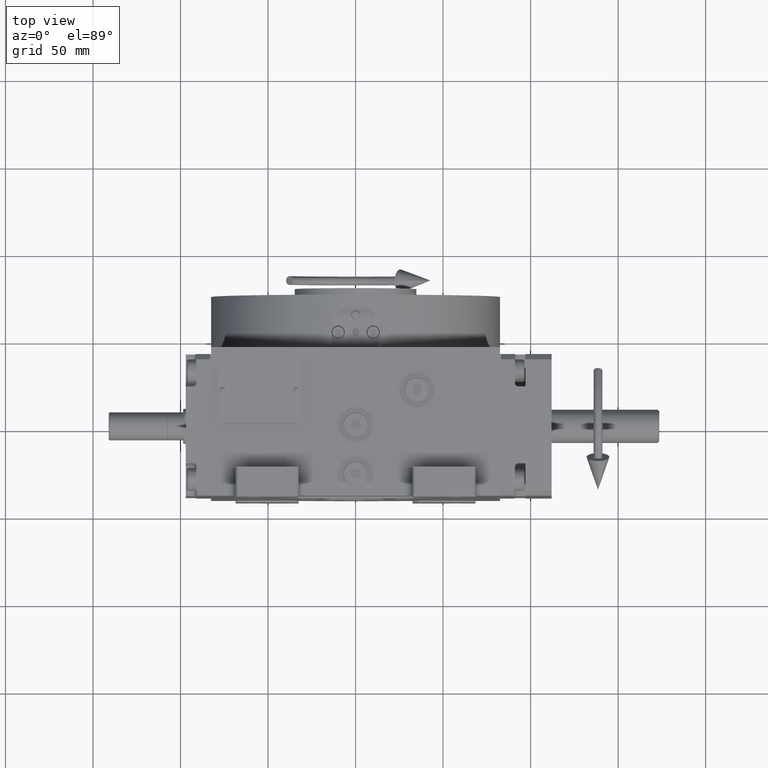
[diagram: clean part render]
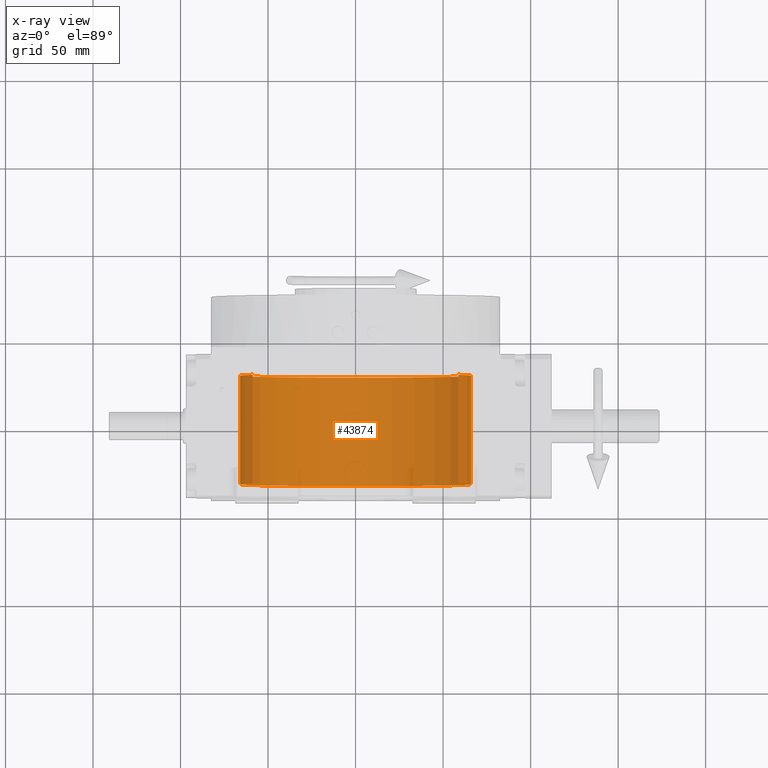
[diagram: x-ray — body ghosted, one internal face saturated and labeled with its STEP entity id]
A machine part, top view, then the same camera in x-ray: the body is ghosted and one INTERNAL B-rep face — a face not visible from any outside direction — is saturated and labeled: STEP entity #43874.
In plain terms, the highlighted cylindrical surface (partial cylindrical patch) has radius 66 mm, axis along (0, 1, 0).
Its self-contained STEP definition (entity closure, byte-faithful):
#2637 = ORIENTED_EDGE ( 'NONE', *, *, #62606, .T. ) ;
#6883 = ORIENTED_EDGE ( 'NONE', *, *, #70990, .T. ) ;
#8093 = CARTESIAN_POINT ( 'NONE',  ( 58.78775382679628336, 98.15000000000000568, 30.00000000000000000 ) ) ;
#8810 = LINE ( 'NONE', #8093, #55652 ) ;
#9236 = AXIS2_PLACEMENT_3D ( 'NONE', #20206, #43322, #65692 ) ;
#11076 = DIRECTION ( 'NONE',  ( 0.000000000000000000, 0.000000000000000000, 1.000000000000000000 ) ) ;
#11805 = CARTESIAN_POINT ( 'NONE',  ( -58.78775382679628336, 98.15000000000000568, 30.00000000000000000 ) ) ;
#16563 = DIRECTION ( 'NONE',  ( -0.000000000000000000, 1.000000000000000000, -0.000000000000000000 ) ) ;
#18322 = EDGE_CURVE ( 'NONE', #23374, #56124, #49500, .T. ) ;
#20206 = CARTESIAN_POINT ( 'NONE',  ( 0.000000000000000000, 98.15000000000000568, 0.000000000000000000 ) ) ;
#23374 = VERTEX_POINT ( 'NONE', #30013 ) ;
#27216 = VERTEX_POINT ( 'NONE', #69482 ) ;
#27896 = CARTESIAN_POINT ( 'NONE',  ( -58.78775382679628336, 30.00000000000001421, 30.00000000000000000 ) ) ;
#27976 = CARTESIAN_POINT ( 'NONE',  ( 0.000000000000000000, -31.99999999999998579, 0.000000000000000000 ) ) ;
#30013 = CARTESIAN_POINT ( 'NONE',  ( 58.78775382679628336, 30.00000000000001421, 30.00000000000000000 ) ) ;
#32774 = CIRCLE ( 'NONE', #56137, 66.00000000000000000 ) ;
#34210 = DIRECTION ( 'NONE',  ( 0.000000000000000000, -1.000000000000000000, 0.000000000000000000 ) ) ;
#36758 = FACE_OUTER_BOUND ( 'NONE', #71816, .T. ) ;
#37476 = ORIENTED_EDGE ( 'NONE', *, *, #69550, .F. ) ;
#37985 = VERTEX_POINT ( 'NONE', #38078 ) ;
#38078 = CARTESIAN_POINT ( 'NONE',  ( 58.78775382679628336, -31.99999999999998579, 30.00000000000000000 ) ) ;
#43322 = DIRECTION ( 'NONE',  ( -0.000000000000000000, 1.000000000000000000, -0.000000000000000000 ) ) ;
#43874 = ADVANCED_FACE ( 'NONE', ( #36758 ), #70467, .F. ) ;
#44753 = CARTESIAN_POINT ( 'NONE',  ( 0.000000000000000000, 30.00000000000001421, 0.000000000000000000 ) ) ;
#45118 = DIRECTION ( 'NONE',  ( -0.000000000000000000, 1.000000000000000000, -0.000000000000000000 ) ) ;
#46951 = DIRECTION ( 'NONE',  ( -0.000000000000000000, 1.000000000000000000, -0.000000000000000000 ) ) ;
#49500 = CIRCLE ( 'NONE', #56496, 66.00000000000000000 ) ;
#50421 = VECTOR ( 'NONE', #34210, 1000.000000000000000 ) ;
#55652 = VECTOR ( 'NONE', #46951, 1000.000000000000000 ) ;
#56124 = VERTEX_POINT ( 'NONE', #27896 ) ;
#56137 = AXIS2_PLACEMENT_3D ( 'NONE', #27976, #16563, #11076 ) ;
#56153 = DIRECTION ( 'NONE',  ( 0.000000000000000000, 0.000000000000000000, 1.000000000000000000 ) ) ;
#56421 = ORIENTED_EDGE ( 'NONE', *, *, #18322, .T. ) ;
#56496 = AXIS2_PLACEMENT_3D ( 'NONE', #44753, #45118, #56153 ) ;
#56920 = LINE ( 'NONE', #11805, #50421 ) ;
#62606 = EDGE_CURVE ( 'NONE', #37985, #23374, #8810, .T. ) ;
#65692 = DIRECTION ( 'NONE',  ( 0.000000000000000000, 0.000000000000000000, 1.000000000000000000 ) ) ;
#69482 = CARTESIAN_POINT ( 'NONE',  ( -58.78775382679628336, -31.99999999999998579, 30.00000000000000000 ) ) ;
#69550 = EDGE_CURVE ( 'NONE', #37985, #27216, #32774, .T. ) ;
#70467 = CYLINDRICAL_SURFACE ( 'NONE', #9236, 66.00000000000000000 ) ;
#70990 = EDGE_CURVE ( 'NONE', #56124, #27216, #56920, .T. ) ;
#71816 = EDGE_LOOP ( 'NONE', ( #6883, #37476, #2637, #56421 ) ) ;